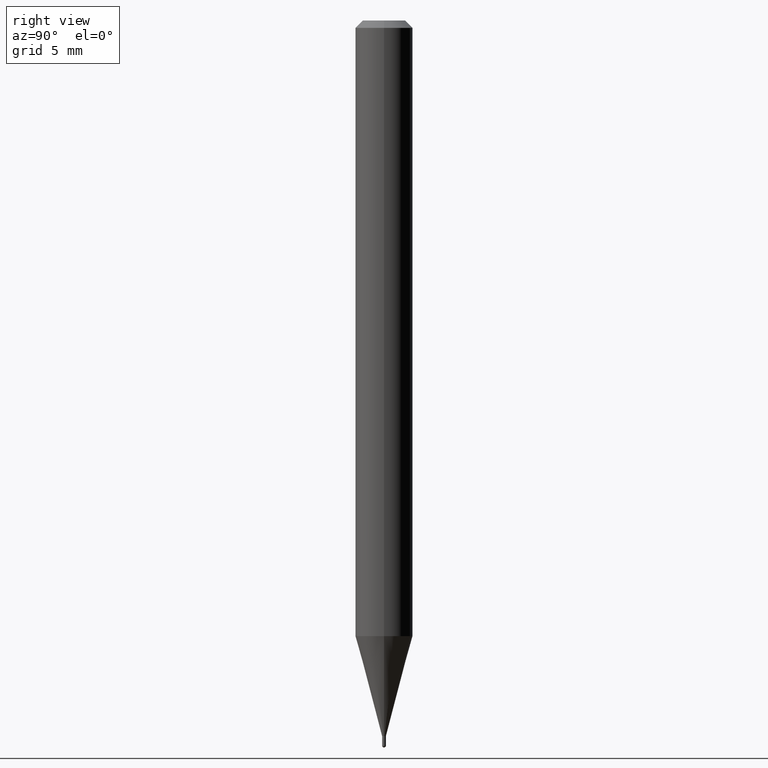
[diagram: clean part render]
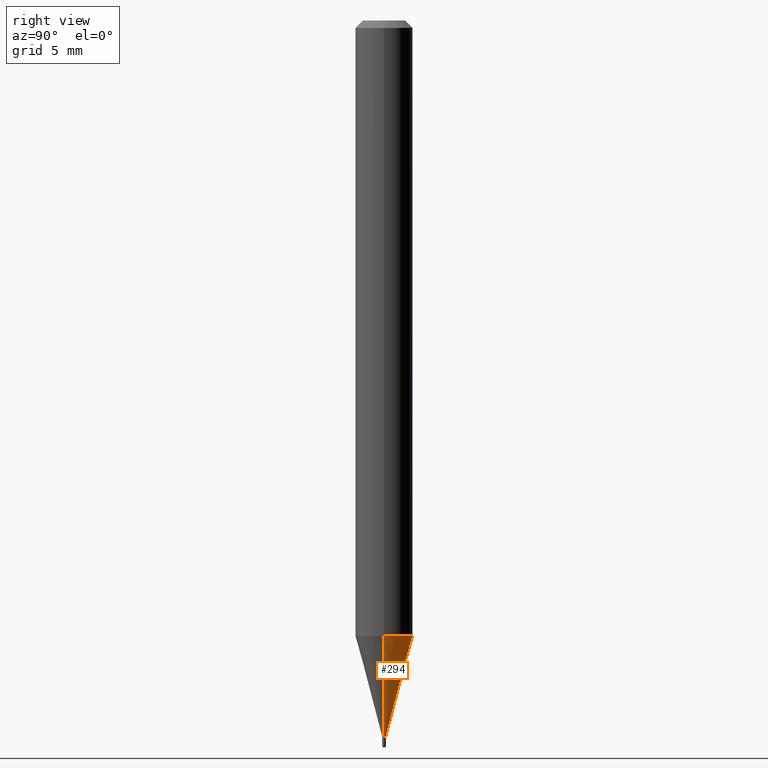
[diagram: same view with one face highlighted and labeled with its STEP entity id]
A machine part, right view. The second image highlights one B-rep face of the part: STEP entity #294.
In plain terms, the highlighted conical surface has half-angle 15 deg.
Its self-contained STEP definition (entity closure, byte-faithful):
#45 = ORIENTED_EDGE ( 'NONE', *, *, #94, .T. ) ;
#56 = FACE_OUTER_BOUND ( 'NONE', #325, .T. ) ;
#63 = CARTESIAN_POINT ( 'NONE',  ( 3.098076394908902159E-29, -4.423232016608262091E-15, -1.266864000502960996 ) ) ;
#84 = DIRECTION ( 'NONE',  ( -2.445468806185136597E-29, 3.491481338843145583E-15, 1.000000000000000000 ) ) ;
#94 = EDGE_CURVE ( 'NONE', #209, #302, #127, .T. ) ;
#127 = CIRCLE ( 'NONE', #427, 0.003949999999999924925 ) ;
#147 = VECTOR ( 'NONE', #460, 39.37007874015748854 ) ;
#149 = ORIENTED_EDGE ( 'NONE', *, *, #409, .F. ) ;
#158 = DIRECTION ( 'NONE',  ( -2.445468806185136597E-29, 3.491481338843145583E-15, 1.000000000000000000 ) ) ;
#165 = CARTESIAN_POINT ( 'NONE',  ( -0.003949999999999924925, -4.558398182262964662E-15, -1.472499999999999920 ) ) ;
#203 = CARTESIAN_POINT ( 'NONE',  ( 3.600952817107613145E-29, -5.141206271446531536E-15, -1.472499999999999920 ) ) ;
#209 = VERTEX_POINT ( 'NONE', #446 ) ;
#226 = VERTEX_POINT ( 'NONE', #263 ) ;
#246 = AXIS2_PLACEMENT_3D ( 'NONE', #63, #268, #312 ) ;
#255 = DIRECTION ( 'NONE',  ( -0.2588190451025284000, 5.211531920934592063E-15, 0.9659258262890662028 ) ) ;
#258 = EDGE_CURVE ( 'NONE', #302, #283, #327, .T. ) ;
#261 = CARTESIAN_POINT ( 'NONE',  ( -0.05904999999999999832, -4.003656531141921809E-15, -1.266864000502960996 ) ) ;
#263 = CARTESIAN_POINT ( 'NONE',  ( 0.05904999999999999832, -4.835575962725635433E-15, -1.266864000502960996 ) ) ;
#266 = CARTESIAN_POINT ( 'NONE',  ( 3.600952817107613145E-29, -5.141206271446531536E-15, -1.472499999999999920 ) ) ;
#268 = DIRECTION ( 'NONE',  ( -2.445468806185136597E-29, 3.491481338843145583E-15, 1.000000000000000000 ) ) ;
#277 = LINE ( 'NONE', #420, #147 ) ;
#283 = VERTEX_POINT ( 'NONE', #261 ) ;
#292 = VECTOR ( 'NONE', #255, 39.37007874015748854 ) ;
#294 = ADVANCED_FACE ( 'NONE', ( #56 ), #428, .T. ) ;
#298 = DIRECTION ( 'NONE',  ( 1.000000000000000000, -6.982962677686379518E-15, 0.000000000000000000 ) ) ;
#302 = VERTEX_POINT ( 'NONE', #165 ) ;
#305 = EDGE_CURVE ( 'NONE', #226, #283, #374, .T. ) ;
#312 = DIRECTION ( 'NONE',  ( 1.000000000000000000, -6.982962677686273021E-15, 0.000000000000000000 ) ) ;
#325 = EDGE_LOOP ( 'NONE', ( #45, #433, #488, #149 ) ) ;
#327 = LINE ( 'NONE', #508, #292 ) ;
#332 = DIRECTION ( 'NONE',  ( 1.000000000000000000, -6.982962677686379518E-15, 0.000000000000000000 ) ) ;
#362 = AXIS2_PLACEMENT_3D ( 'NONE', #203, #84, #298 ) ;
#374 = CIRCLE ( 'NONE', #246, 0.05904999999999999832 ) ;
#409 = EDGE_CURVE ( 'NONE', #209, #226, #277, .T. ) ;
#420 = CARTESIAN_POINT ( 'NONE',  ( 0.003949999999999924925, -5.168788974023392081E-15, -1.472499999999999920 ) ) ;
#427 = AXIS2_PLACEMENT_3D ( 'NONE', #266, #158, #332 ) ;
#428 = CONICAL_SURFACE ( 'NONE', #362, 0.003949999999999924925, 0.2617993877991573459 ) ;
#433 = ORIENTED_EDGE ( 'NONE', *, *, #258, .T. ) ;
#446 = CARTESIAN_POINT ( 'NONE',  ( 0.003949999999999924925, -5.168788974023392081E-15, -1.472499999999999920 ) ) ;
#460 = DIRECTION ( 'NONE',  ( 0.2588190451025284000, 1.565188264969566156E-15, 0.9659258262890662028 ) ) ;
#488 = ORIENTED_EDGE ( 'NONE', *, *, #305, .F. ) ;
#508 = CARTESIAN_POINT ( 'NONE',  ( -0.003949999999999924925, -5.113139833384007514E-15, -1.472499999999999920 ) ) ;